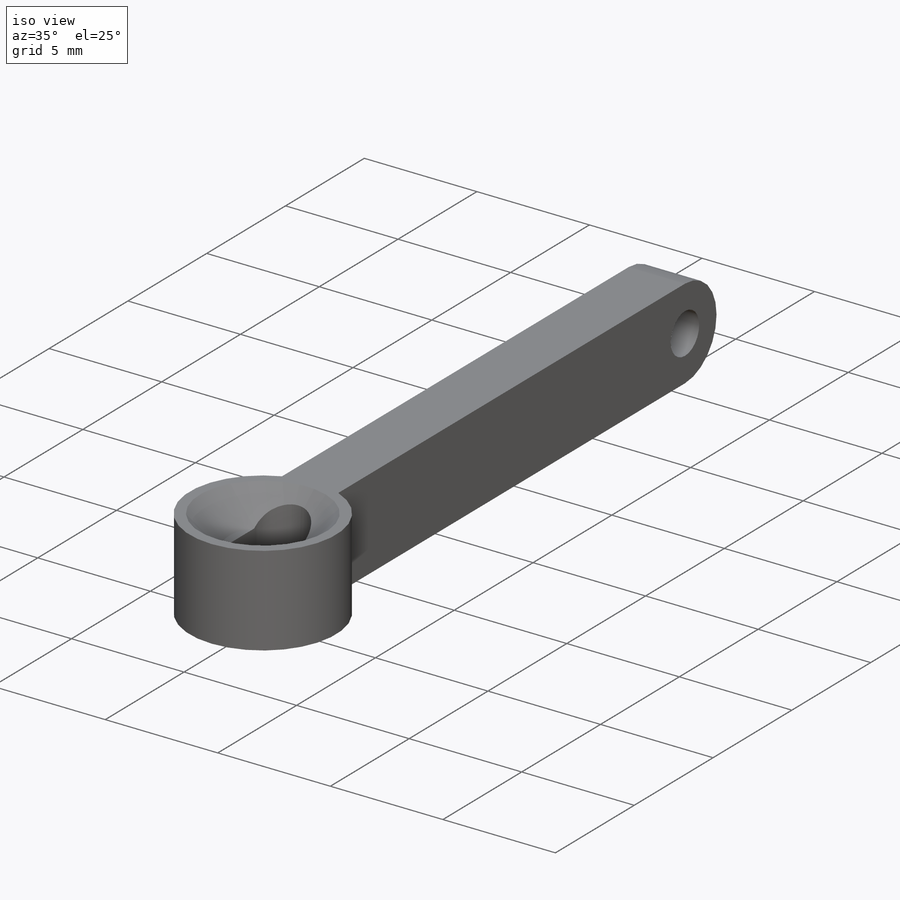
[diagram: iso view]
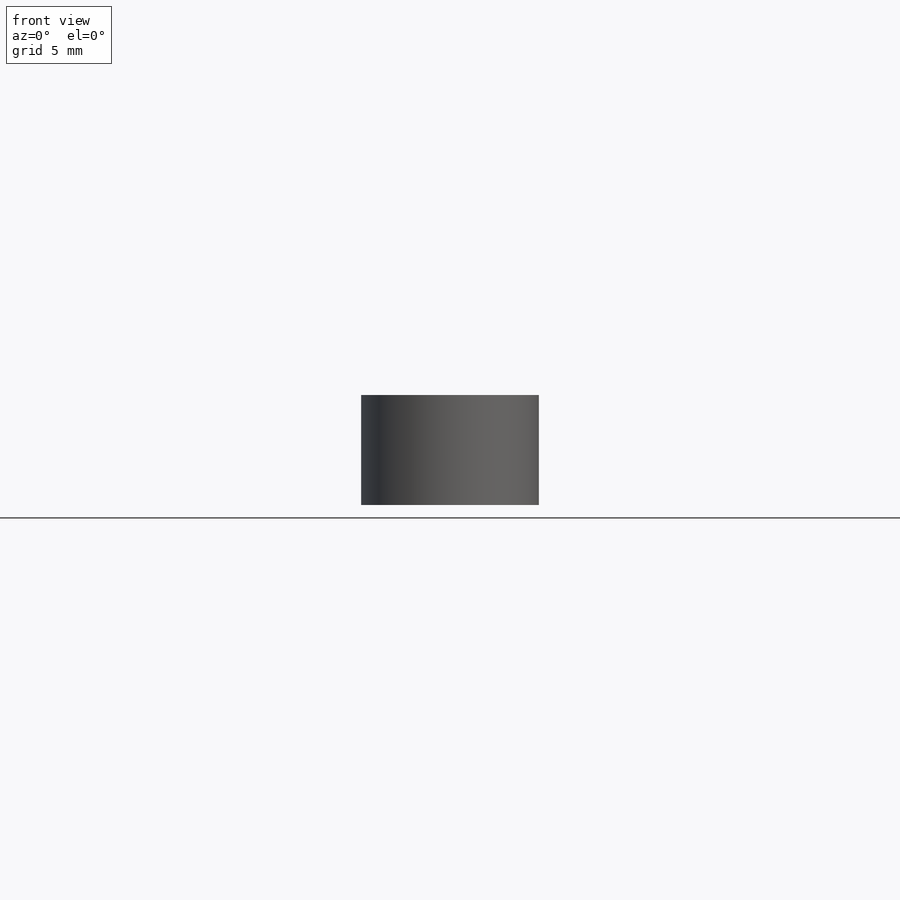
[diagram: front view]
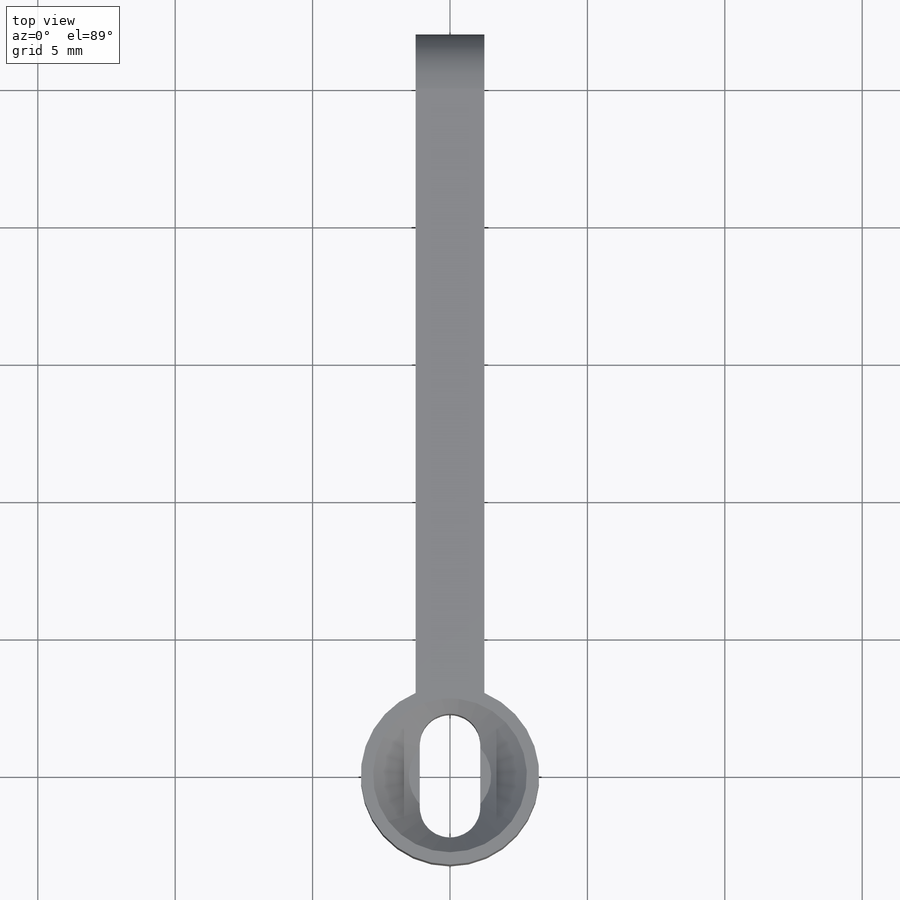
[diagram: top view]
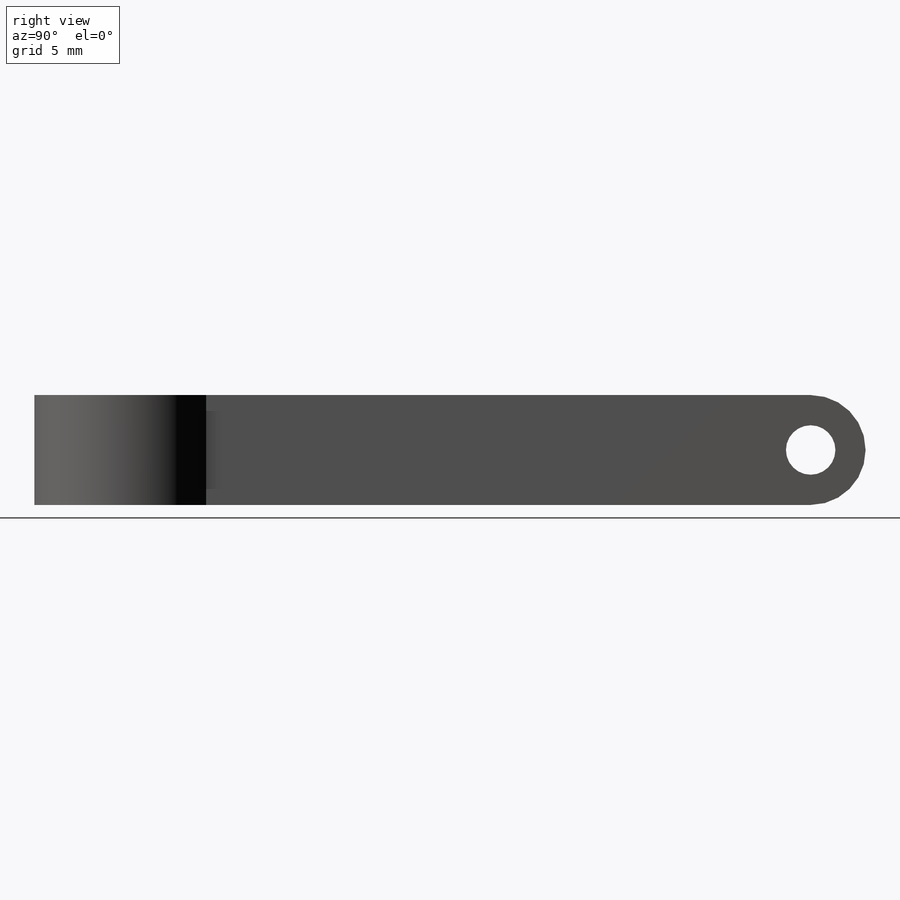
[diagram: right view]
SOLIDWORKS PART (.sldprt)
format: sldprt  version: not decoded by parser v0  size: 219,136 bytes
history: native  units: mm
features: plane x3, sketch x3, extrude x2, material x1, cut_revolve x1 (+10 scaffold rows collapsed)
feature tree (20):
  scaffold x10  (default folders/planes/origin — collapsed)
  material  "材质 <未指定>"
  plane  "前视基准面"
  plane  "上视基准面"
  plane  "右视基准面"
  sketch  "Sketch1"  dims[c1.D1=1.7mm c1.D3=6.5mm c2.D1=2.3mm c2.D2=2.2mm]
  extrude  "Extrude1"  Depth=4mm
  sketch  "Sketch2"  dims[D1=1.8mm D2=22.0mm D3=3.0mm]
  extrude  "Extrude2"  Depth=2.5mm
  sketch  "Sketch4"  dims[c1.D1=~2.045364mm c2.D1=135.0deg c2.D2=2.8mm c2.D3=1.5mm c2.D4=~1.515788mm c3.D4=135.0deg c3.D5=2.5mm c3.D6=1.5mm]
  cut_revolve  "Cut-Revolve1"  Angle=360deg
decode coverage: 6 of 6 modeling features carry decoded parameters
note: ~ marks probable driven/reference dimensions
note: suppression state not decoded; provenance and decode notes live in map.json
